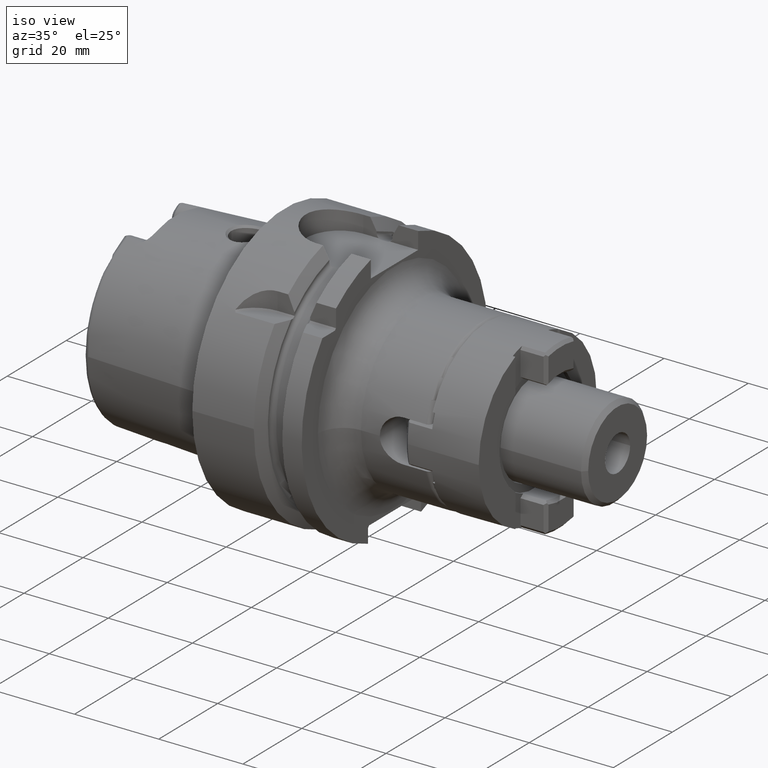
[diagram: clean part render]
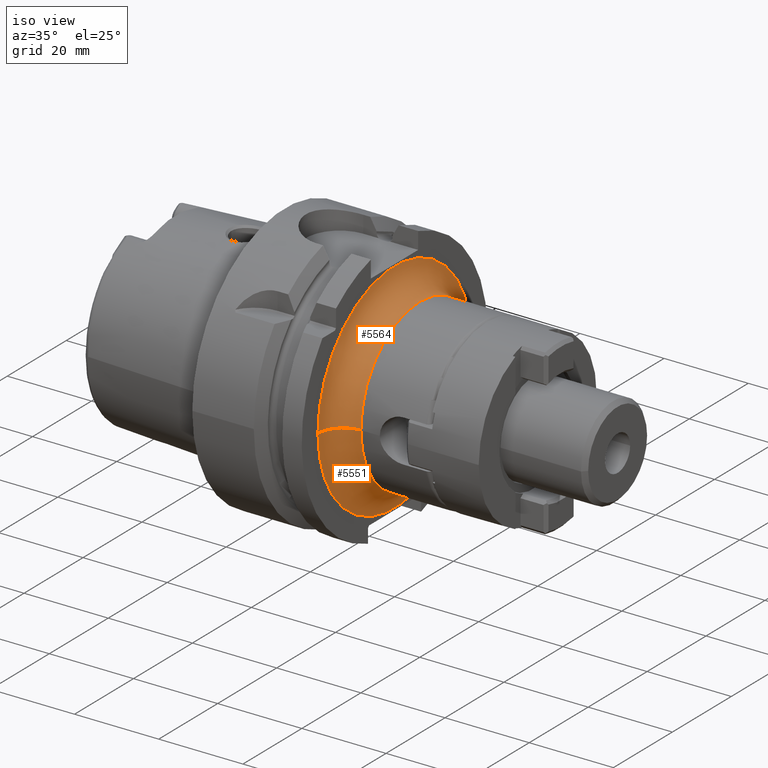
[diagram: same view with one multi-face feature highlighted, each face labeled with its STEP entity id]
A machine part, iso view. The highlighted faces form ONE feature: a constant-radius fillet chain: 2 tangent blend faces with common blend radius 6 mm. The faces share edges in the B-rep.
Their STEP definitions:
[1] entity #5551 (Torus):
#1708=CARTESIAN_POINT('',(2.6E1,0.E0,0.E0));
#1709=DIRECTION('',(1.E0,0.E0,0.E0));
#1710=DIRECTION('',(0.E0,-1.E0,0.E0));
#1711=AXIS2_PLACEMENT_3D('',#1708,#1709,#1710);
#1956=CARTESIAN_POINT('',(3.2E1,-2.6E1,7.285838599103E-14));
#1957=DIRECTION('',(0.E0,0.E0,-1.E0));
#1958=DIRECTION('',(-1.E0,0.E0,0.E0));
#1959=AXIS2_PLACEMENT_3D('',#1956,#1957,#1958);
#1961=CARTESIAN_POINT('',(3.2E1,2.6E1,-7.624456621613E-14));
#1962=DIRECTION('',(0.E0,0.E0,1.E0));
#1963=DIRECTION('',(-1.E0,0.E0,0.E0));
#1964=AXIS2_PLACEMENT_3D('',#1961,#1962,#1963);
#2879=CARTESIAN_POINT('',(3.2E1,0.E0,0.E0));
#2880=DIRECTION('',(1.E0,0.E0,0.E0));
#2881=DIRECTION('',(0.E0,-1.E0,0.E0));
#2882=AXIS2_PLACEMENT_3D('',#2879,#2880,#2881);
#3378=CARTESIAN_POINT('',(2.6E1,-2.6E1,0.E0));
#3379=CARTESIAN_POINT('',(2.6E1,2.6E1,0.E0));
#3380=VERTEX_POINT('',#3378);
#3381=VERTEX_POINT('',#3379);
#3382=CARTESIAN_POINT('',(3.2E1,-2.E1,0.E0));
#3383=CARTESIAN_POINT('',(3.2E1,2.E1,0.E0));
#3384=VERTEX_POINT('',#3382);
#3385=VERTEX_POINT('',#3383);
#5537=CARTESIAN_POINT('',(3.2E1,0.E0,0.E0));
#5538=DIRECTION('',(1.E0,0.E0,0.E0));
#5539=DIRECTION('',(0.E0,-9.999926110723E-1,3.844190531823E-3));
#5540=AXIS2_PLACEMENT_3D('',#5537,#5538,#5539);
#5541=TOROIDAL_SURFACE('',#5540,2.6E1,6.E0);
#5542=ORIENTED_EDGE('',*,*,#5244,.F.);
#5544=ORIENTED_EDGE('',*,*,#5543,.T.);
#5546=ORIENTED_EDGE('',*,*,#5545,.T.);
#5548=ORIENTED_EDGE('',*,*,#5547,.F.);
#5549=EDGE_LOOP('',(#5542,#5544,#5546,#5548));
#5550=FACE_OUTER_BOUND('',#5549,.F.);
#5551=ADVANCED_FACE('',(#5550),#5541,.F.);
#1712=CIRCLE('',#1711,2.6E1);
#1960=CIRCLE('',#1959,6.E0);
#1965=CIRCLE('',#1964,6.E0);
#2883=CIRCLE('',#2882,2.E1);
#5244=EDGE_CURVE('',#3380,#3381,#1712,.T.);
#5543=EDGE_CURVE('',#3380,#3384,#1960,.T.);
#5545=EDGE_CURVE('',#3384,#3385,#2883,.T.);
#5547=EDGE_CURVE('',#3381,#3385,#1965,.T.);
[2] entity #5564 (Torus):
#1713=CARTESIAN_POINT('',(2.6E1,0.E0,0.E0));
#1714=DIRECTION('',(1.E0,0.E0,0.E0));
#1715=DIRECTION('',(0.E0,1.E0,0.E0));
#1716=AXIS2_PLACEMENT_3D('',#1713,#1714,#1715);
#1956=CARTESIAN_POINT('',(3.2E1,-2.6E1,7.285838599103E-14));
#1957=DIRECTION('',(0.E0,0.E0,-1.E0));
#1958=DIRECTION('',(-1.E0,0.E0,0.E0));
#1959=AXIS2_PLACEMENT_3D('',#1956,#1957,#1958);
#1961=CARTESIAN_POINT('',(3.2E1,2.6E1,-7.624456621613E-14));
#1962=DIRECTION('',(0.E0,0.E0,1.E0));
#1963=DIRECTION('',(-1.E0,0.E0,0.E0));
#1964=AXIS2_PLACEMENT_3D('',#1961,#1962,#1963);
#1982=CARTESIAN_POINT('',(3.2E1,0.E0,0.E0));
#1983=DIRECTION('',(1.E0,0.E0,0.E0));
#1984=DIRECTION('',(0.E0,1.E0,0.E0));
#1985=AXIS2_PLACEMENT_3D('',#1982,#1983,#1984);
#3378=CARTESIAN_POINT('',(2.6E1,-2.6E1,0.E0));
#3379=CARTESIAN_POINT('',(2.6E1,2.6E1,0.E0));
#3380=VERTEX_POINT('',#3378);
#3381=VERTEX_POINT('',#3379);
#3382=CARTESIAN_POINT('',(3.2E1,-2.E1,0.E0));
#3383=CARTESIAN_POINT('',(3.2E1,2.E1,0.E0));
#3384=VERTEX_POINT('',#3382);
#3385=VERTEX_POINT('',#3383);
#5552=CARTESIAN_POINT('',(3.2E1,0.E0,0.E0));
#5553=DIRECTION('',(1.E0,0.E0,0.E0));
#5554=DIRECTION('',(0.E0,9.999926110723E-1,-3.844190531824E-3));
#5555=AXIS2_PLACEMENT_3D('',#5552,#5553,#5554);
#5556=TOROIDAL_SURFACE('',#5555,2.6E1,6.E0);
#5557=ORIENTED_EDGE('',*,*,#5246,.F.);
#5558=ORIENTED_EDGE('',*,*,#5547,.T.);
#5560=ORIENTED_EDGE('',*,*,#5559,.T.);
#5561=ORIENTED_EDGE('',*,*,#5543,.F.);
#5562=EDGE_LOOP('',(#5557,#5558,#5560,#5561));
#5563=FACE_OUTER_BOUND('',#5562,.F.);
#5564=ADVANCED_FACE('',(#5563),#5556,.F.);
#1717=CIRCLE('',#1716,2.6E1);
#1960=CIRCLE('',#1959,6.E0);
#1965=CIRCLE('',#1964,6.E0);
#1986=CIRCLE('',#1985,2.E1);
#5246=EDGE_CURVE('',#3381,#3380,#1717,.T.);
#5543=EDGE_CURVE('',#3380,#3384,#1960,.T.);
#5547=EDGE_CURVE('',#3381,#3385,#1965,.T.);
#5559=EDGE_CURVE('',#3385,#3384,#1986,.T.);